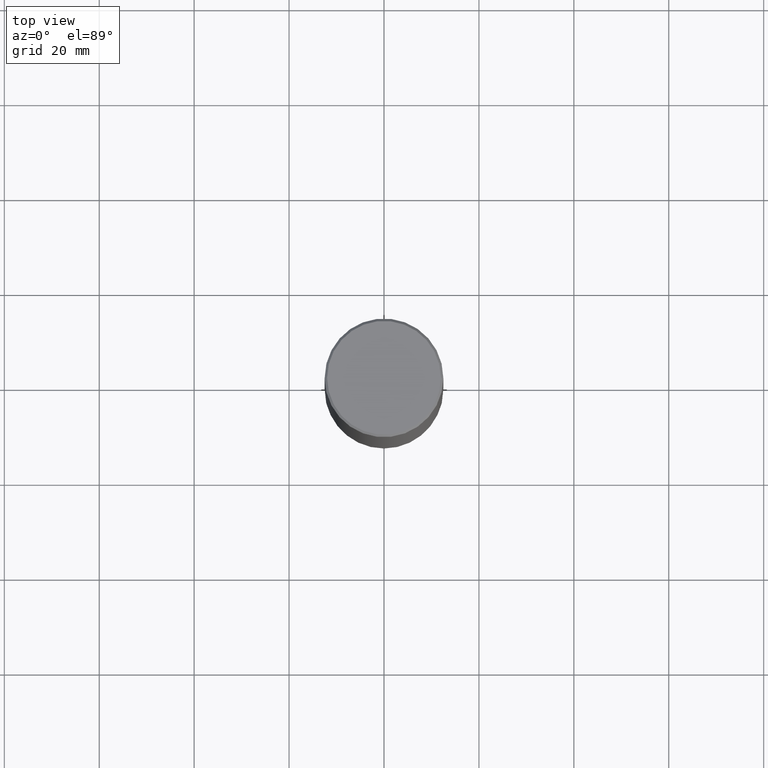
[diagram: clean part render]
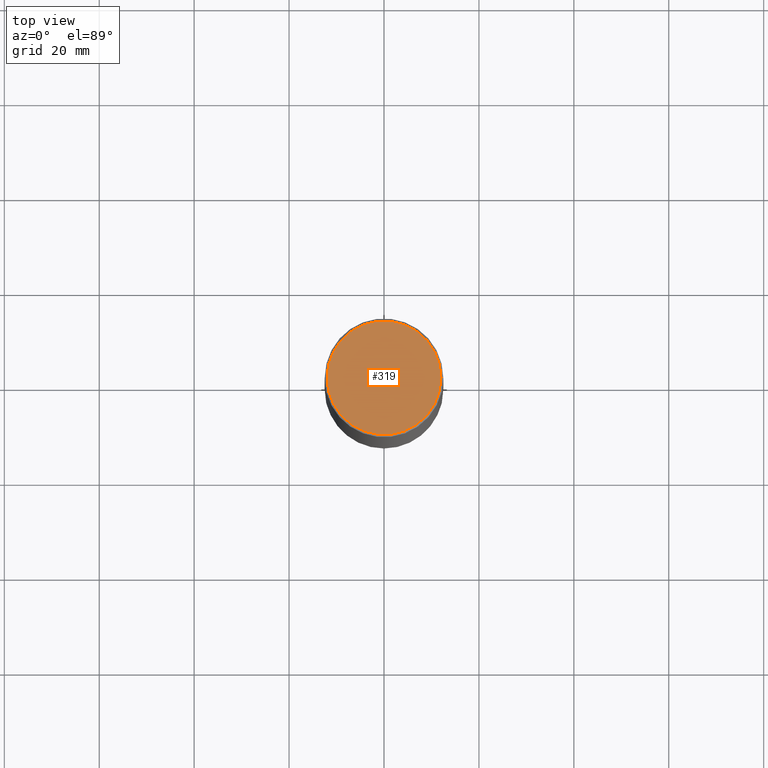
[diagram: same view with one face highlighted and labeled with its STEP entity id]
A machine part, top view. The second image highlights one B-rep face of the part: STEP entity #319.
In plain terms, the highlighted planar face has unit normal (0, -0, -1).
Its self-contained STEP definition (entity closure, byte-faithful):
#36 = AXIS2_PLACEMENT_3D ( 'NONE', #239, #40, #353 ) ;
#40 = DIRECTION ( 'NONE',  ( -2.445468806185136597E-29, 3.491481338843145583E-15, 1.000000000000000000 ) ) ;
#42 = PLANE ( 'NONE',  #224 ) ;
#44 = DIRECTION ( 'NONE',  ( 2.438088387897960049E-29, -3.491481338843145188E-15, -1.000000000000000000 ) ) ;
#111 = DIRECTION ( 'NONE',  ( -1.000000000000000000, 6.982962677686265922E-15, -4.876176775795935793E-29 ) ) ;
#120 = CARTESIAN_POINT ( 'NONE',  ( -8.142041031814712920E-45, 1.162467672896748646E-30, 3.329439742278319996E-16 ) ) ;
#180 = EDGE_CURVE ( 'NONE', #314, #184, #242, .T. ) ;
#183 = CARTESIAN_POINT ( 'NONE',  ( -0.4721499999999996255, 3.331920641658000829E-15, 3.329439742278088268E-16 ) ) ;
#184 = VERTEX_POINT ( 'NONE', #219 ) ;
#196 = CIRCLE ( 'NONE', #36, 0.4721499999999996255 ) ;
#219 = CARTESIAN_POINT ( 'NONE',  ( 0.4721499999999996255, -3.342703923013973791E-15, 3.329439742278552710E-16 ) ) ;
#224 = AXIS2_PLACEMENT_3D ( 'NONE', #238, #44, #111 ) ;
#229 = AXIS2_PLACEMENT_3D ( 'NONE', #120, #255, #367 ) ;
#238 = CARTESIAN_POINT ( 'NONE',  ( 3.297005828269567997E-15, 0.4721499999999996255, -1.482030927020873866E-15 ) ) ;
#239 = CARTESIAN_POINT ( 'NONE',  ( -8.142041031814712920E-45, 1.162467672896748646E-30, 3.329439742278319996E-16 ) ) ;
#242 = CIRCLE ( 'NONE', #229, 0.4721499999999996255 ) ;
#255 = DIRECTION ( 'NONE',  ( -2.445468806185136597E-29, 3.491481338843145583E-15, 1.000000000000000000 ) ) ;
#314 = VERTEX_POINT ( 'NONE', #183 ) ;
#319 = ADVANCED_FACE ( 'NONE', ( #391 ), #42, .F. ) ;
#321 = EDGE_LOOP ( 'NONE', ( #358, #410 ) ) ;
#341 = EDGE_CURVE ( 'NONE', #184, #314, #196, .T. ) ;
#353 = DIRECTION ( 'NONE',  ( 1.000000000000000000, -6.982962677686265922E-15, 4.882029041999365698E-29 ) ) ;
#358 = ORIENTED_EDGE ( 'NONE', *, *, #180, .T. ) ;
#367 = DIRECTION ( 'NONE',  ( 1.000000000000000000, -6.982962677686265922E-15, 4.882029041999365698E-29 ) ) ;
#391 = FACE_OUTER_BOUND ( 'NONE', #321, .T. ) ;
#410 = ORIENTED_EDGE ( 'NONE', *, *, #341, .T. ) ;